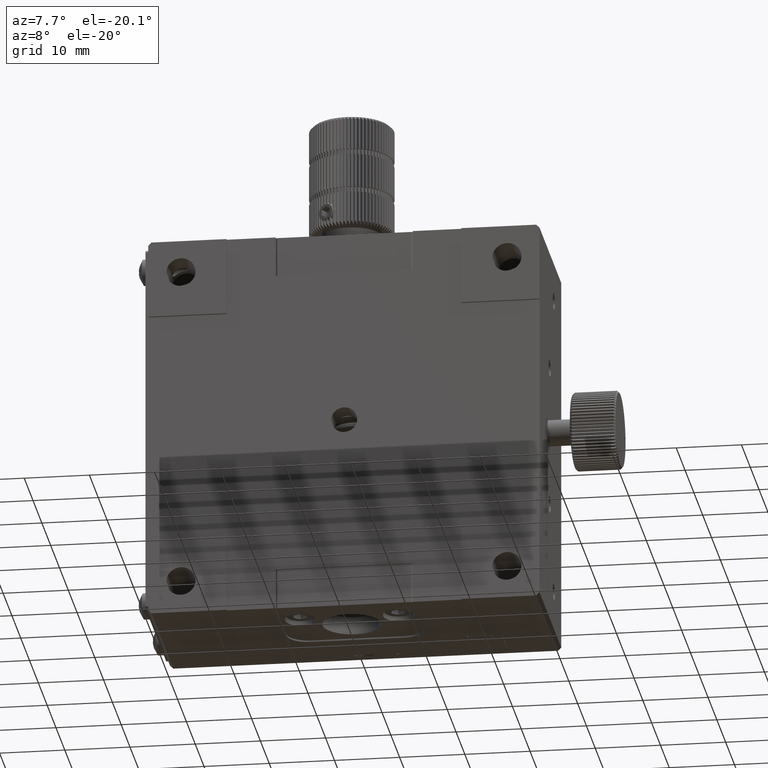
[diagram: clean part render]
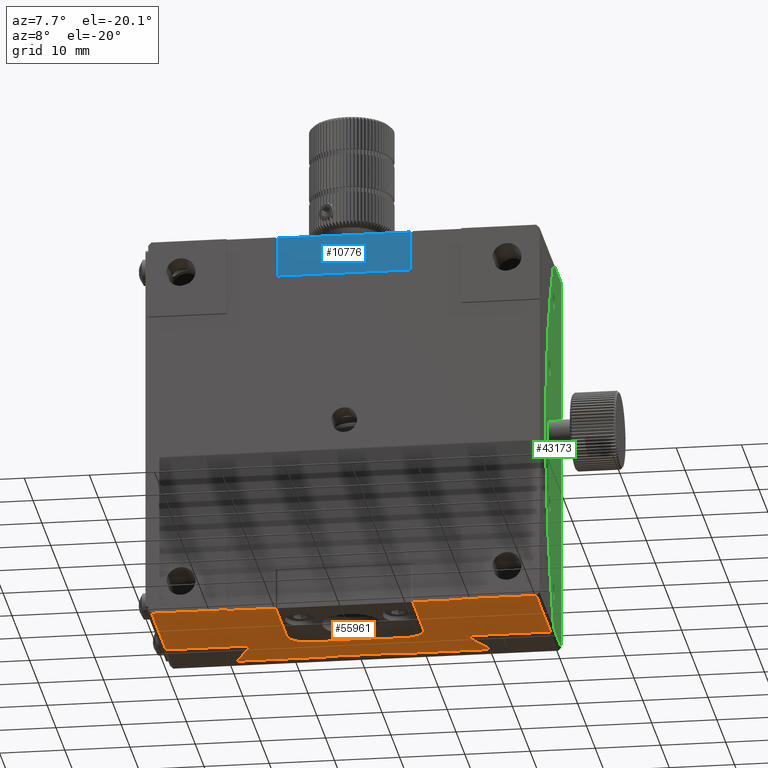
[diagram: same view with three faces highlighted in distinct colors, each labeled with its STEP entity id]
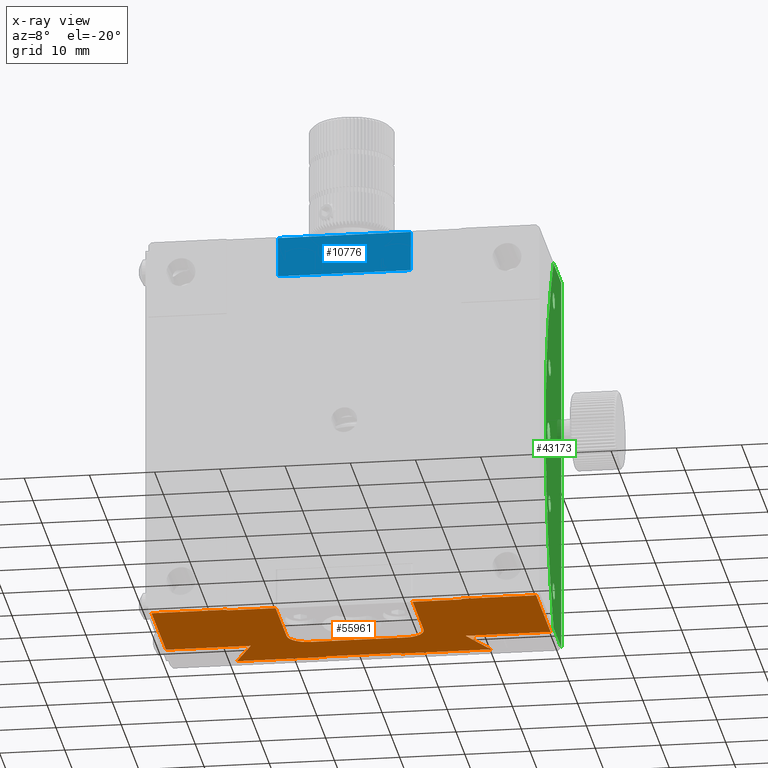
[diagram: x-ray of the same camera — body ghosted, the three highlighted faces saturated]
A machine part, auxiliary view with three faces highlighted in distinct colors.
The next image is the same camera in x-ray (body ghosted, the three faces saturated) — at least one of them is partly hidden behind the body in this view.
Their STEP definitions:

[orange] entity #55961 — the highlighted planar face has unit normal (0, 0, 1).
#1327 = LINE ( 'NONE', #55993, #27443 ) ;
#2026 = VERTEX_POINT ( 'NONE', #43690 ) ;
#2144 = DIRECTION ( 'NONE',  ( -1.000000000000000000, -0.000000000000000000, 3.491481338843133355E-15 ) ) ;
#2207 = DIRECTION ( 'NONE',  ( -3.491481338843133355E-15, -1.000000000000000000, 1.319990104689419209E-29 ) ) ;
#2865 = CARTESIAN_POINT ( 'NONE',  ( 32.05815170114983914, 61.33657315266990651, 20.22904667704488446 ) ) ;
#3054 = VERTEX_POINT ( 'NONE', #17234 ) ;
#3874 = CARTESIAN_POINT ( 'NONE',  ( 67.57580293849511577, 54.78259067946557792, 20.22904667704476012 ) ) ;
#3913 = CARTESIAN_POINT ( 'NONE',  ( 20.05815170114993862, 52.13657315266983261, 20.22904667704492709 ) ) ;
#4064 = CARTESIAN_POINT ( 'NONE',  ( 60.55815170114989598, 36.63657315266976866, 20.22904667704478499 ) ) ;
#4774 = CARTESIAN_POINT ( 'NONE',  ( 20.05815170114993862, 61.33657315266990651, 20.22904667704492709 ) ) ;
#4884 = ORIENTED_EDGE ( 'NONE', *, *, #70477, .F. ) ;
#4940 = EDGE_CURVE ( 'NONE', #67915, #35099, #9403, .T. ) ;
#5058 = LINE ( 'NONE', #46582, #64695 ) ;
#5188 = CARTESIAN_POINT ( 'NONE',  ( 30.57110469794940855, 59.08938087992758881, 20.22904673143565546 ) ) ;
#5687 = CARTESIAN_POINT ( 'NONE',  ( 57.45815170114989456, 49.03657315266978145, 20.22904667704478143 ) ) ;
#5829 = CARTESIAN_POINT ( 'NONE',  ( 55.80815170114991730, 58.80255524890676355, 20.22904667704480630 ) ) ;
#6616 = DIRECTION ( 'NONE',  ( -3.491481338843133355E-15, -1.000000000000000000, 1.219044193948983948E-29 ) ) ;
#6886 = CARTESIAN_POINT ( 'NONE',  ( 32.05815170114983914, 36.33657315266987098, 20.22904667704490578 ) ) ;
#6939 = VERTEX_POINT ( 'NONE', #18771 ) ;
#7701 = CARTESIAN_POINT ( 'NONE',  ( 20.55815170114990309, 61.33657315266990651, 20.22904667704492354 ) ) ;
#8160 = EDGE_CURVE ( 'NONE', #40470, #58418, #25551, .T. ) ;
#8985 = LINE ( 'NONE', #32634, #48270 ) ;
#9095 = ORIENTED_EDGE ( 'NONE', *, *, #51491, .F. ) ;
#9403 = B_SPLINE_CURVE_WITH_KNOTS ( 'NONE', 3,
 ( #5188, #11786, #19812, #59117 ),
 .UNSPECIFIED., .F., .F.,
 ( 4, 4 ),
 ( 1.372648714548291892E-11, 0.007103474097558771204 ),
 .UNSPECIFIED. ) ;
#9405 = CARTESIAN_POINT ( 'NONE',  ( 79.55815170114983914, 36.33657315266972176, 20.22904667704472459 ) ) ;
#9541 = CARTESIAN_POINT ( 'NONE',  ( 42.65815170114988319, 49.03657315266984540, 20.22904667704483472 ) ) ;
#9678 = CARTESIAN_POINT ( 'NONE',  ( 50.05815170114995283, 36.63657315266980419, 20.22904667704488801 ) ) ;
#10313 = LINE ( 'NONE', #46388, #53332 ) ;
#10331 = VERTEX_POINT ( 'NONE', #17253 ) ;
#11258 = VERTEX_POINT ( 'NONE', #58842 ) ;
#11648 = DIRECTION ( 'NONE',  ( 1.000000000000000000, 0.000000000000000000, -3.491481338843133355E-15 ) ) ;
#11786 = CARTESIAN_POINT ( 'NONE',  ( 31.54219587820414361, 56.92967945082794756, 20.22904667704488446 ) ) ;
#12011 = VERTEX_POINT ( 'NONE', #49597 ) ;
#12859 = VECTOR ( 'NONE', #39527, 1000.000000000000000 ) ;
#12988 = VERTEX_POINT ( 'NONE', #40323 ) ;
#13263 = EDGE_CURVE ( 'NONE', #11258, #70294, #49617, .T. ) ;
#13623 = VECTOR ( 'NONE', #2144, 1000.000000000000000 ) ;
#14865 = VERTEX_POINT ( 'NONE', #4064 ) ;
#15760 = ORIENTED_EDGE ( 'NONE', *, *, #49673, .F. ) ;
#16169 = ORIENTED_EDGE ( 'NONE', *, *, #58844, .F. ) ;
#16275 = DIRECTION ( 'NONE',  ( -0.000000000000000000, 1.000000000000000000, 0.000000000000000000 ) ) ;
#16474 = CARTESIAN_POINT ( 'NONE',  ( 55.80815170114991730, 59.08938087432369457, 20.22904667704480275 ) ) ;
#17234 = CARTESIAN_POINT ( 'NONE',  ( 44.30815170114991020, 59.08938087432377273, 20.22904667704484183 ) ) ;
#17253 = CARTESIAN_POINT ( 'NONE',  ( 68.05815170114983914, 36.63657315266975445, 20.22904667704476722 ) ) ;
#17415 = LINE ( 'NONE', #34492, #42964 ) ;
#18208 = VECTOR ( 'NONE', #27466, 1000.000000000000000 ) ;
#18365 = ORIENTED_EDGE ( 'NONE', *, *, #71165, .F. ) ;
#18472 = DIRECTION ( 'NONE',  ( -3.491481338843133355E-15, 0.000000000000000000, -1.000000000000000000 ) ) ;
#18739 = ORIENTED_EDGE ( 'NONE', *, *, #32662, .F. ) ;
#18771 = CARTESIAN_POINT ( 'NONE',  ( 32.05815170114985335, 36.63657315266986814, 20.22904667704488446 ) ) ;
#19429 = LINE ( 'NONE', #60918, #67603 ) ;
#19576 = VERTEX_POINT ( 'NONE', #64349 ) ;
#19812 = CARTESIAN_POINT ( 'NONE',  ( 32.54050046062036472, 54.78259068615608385, 20.22904667704488091 ) ) ;
#20024 = EDGE_CURVE ( 'NONE', #3054, #67915, #49484, .T. ) ;
#20323 = DIRECTION ( 'NONE',  ( 3.491481338843133355E-15, 1.000000000000000000, -1.219044193948983948E-29 ) ) ;
#20716 = DIRECTION ( 'NONE',  ( -0.000000000000000000, 1.000000000000000000, 0.000000000000000000 ) ) ;
#20932 = LINE ( 'NONE', #21719, #44136 ) ;
#21719 = CARTESIAN_POINT ( 'NONE',  ( 20.05815170114993862, 36.33657315266974308, 20.22904667704492709 ) ) ;
#23637 = ORIENTED_EDGE ( 'NONE', *, *, #28960, .F. ) ;
#24057 = DIRECTION ( 'NONE',  ( -1.000000000000000000, -0.000000000000000000, 3.491481338843133355E-15 ) ) ;
#24245 = CARTESIAN_POINT ( 'NONE',  ( 20.05815170114993862, 58.80255524890677066, 20.22904667704492709 ) ) ;
#24498 = VERTEX_POINT ( 'NONE', #6886 ) ;
#24924 = ORIENTED_EDGE ( 'NONE', *, *, #62489, .F. ) ;
#25551 = CIRCLE ( 'NONE', #36686, 3.099999999999998757 ) ;
#27443 = VECTOR ( 'NONE', #20323, 1000.000000000000000 ) ;
#27466 = DIRECTION ( 'NONE',  ( -0.000000000000000000, 1.000000000000000000, 0.000000000000000000 ) ) ;
#28059 = FACE_OUTER_BOUND ( 'NONE', #54481, .T. ) ;
#28430 = DIRECTION ( 'NONE',  ( 3.491481338843133355E-15, 0.000000000000000000, 1.000000000000000000 ) ) ;
#28797 = CARTESIAN_POINT ( 'NONE',  ( 50.05815170114995283, 36.63657315266980419, 20.22904667704478499 ) ) ;
#28960 = EDGE_CURVE ( 'NONE', #6939, #19576, #29035, .T. ) ;
#29035 = LINE ( 'NONE', #9678, #12859 ) ;
#29174 = LINE ( 'NONE', #28797, #49773 ) ;
#29859 = LINE ( 'NONE', #34931, #46592 ) ;
#30259 = CARTESIAN_POINT ( 'NONE',  ( 20.05815170114993862, 52.64446860276273554, 20.22904667704492709 ) ) ;
#30922 = CARTESIAN_POINT ( 'NONE',  ( 42.65815170114989030, 52.13657315266983261, 20.22904667704484183 ) ) ;
#31076 = VERTEX_POINT ( 'NONE', #9405 ) ;
#31244 = EDGE_CURVE ( 'NONE', #3054, #2026, #19429, .T. ) ;
#31356 = DIRECTION ( 'NONE',  ( 0.000000000000000000, -1.000000000000000000, -0.000000000000000000 ) ) ;
#31433 = EDGE_CURVE ( 'NONE', #12988, #31076, #20932, .T. ) ;
#31644 = ORIENTED_EDGE ( 'NONE', *, *, #41591, .F. ) ;
#32634 = CARTESIAN_POINT ( 'NONE',  ( 60.55815170114989598, 61.33657315266990651, 20.22904667704478499 ) ) ;
#32662 = EDGE_CURVE ( 'NONE', #31076, #58430, #17415, .T. ) ;
#33314 = CARTESIAN_POINT ( 'NONE',  ( 66.55815170114989598, 52.64446860276277107, 20.22904667704476367 ) ) ;
#33567 = DIRECTION ( 'NONE',  ( -3.491481338843133355E-15, -0.000000000000000000, -1.000000000000000000 ) ) ;
#34054 = LINE ( 'NONE', #45320, #18208 ) ;
#34492 = CARTESIAN_POINT ( 'NONE',  ( 79.55815170114983914, 61.33657315266990651, 20.22904667704472104 ) ) ;
#34552 = DIRECTION ( 'NONE',  ( 0.000000000000000000, -1.000000000000000000, -0.000000000000000000 ) ) ;
#34620 = ORIENTED_EDGE ( 'NONE', *, *, #31433, .F. ) ;
#34931 = CARTESIAN_POINT ( 'NONE',  ( 20.05815170114993862, 52.64446860276289897, 20.22904667704492709 ) ) ;
#35099 = VERTEX_POINT ( 'NONE', #38763 ) ;
#36686 = AXIS2_PLACEMENT_3D ( 'NONE', #5687, #18472, #58854 ) ;
#36723 = VERTEX_POINT ( 'NONE', #52149 ) ;
#37048 = ORIENTED_EDGE ( 'NONE', *, *, #13263, .F. ) ;
#37407 = VERTEX_POINT ( 'NONE', #30922 ) ;
#38395 = DIRECTION ( 'NONE',  ( 1.000000000000000000, 0.000000000000000000, -3.491481338843133355E-15 ) ) ;
#38763 = CARTESIAN_POINT ( 'NONE',  ( 33.55815170114988177, 52.64446860276290607, 20.22904667704487736 ) ) ;
#39056 = AXIS2_PLACEMENT_3D ( 'NONE', #9541, #33567, #63834 ) ;
#39417 = CARTESIAN_POINT ( 'NONE',  ( 68.05815170114983914, 36.63657315266974024, 20.22904667704477077 ) ) ;
#39483 = ORIENTED_EDGE ( 'NONE', *, *, #31244, .T. ) ;
#39527 = DIRECTION ( 'NONE',  ( 1.000000000000000000, -3.491481338843133355E-15, 0.000000000000000000 ) ) ;
#40061 = VECTOR ( 'NONE', #31356, 1000.000000000000000 ) ;
#40323 = CARTESIAN_POINT ( 'NONE',  ( 68.05815170114983914, 36.33657315266974308, 20.22904667704476722 ) ) ;
#40470 = VERTEX_POINT ( 'NONE', #70550 ) ;
#40543 = DIRECTION ( 'NONE',  ( -1.000000000000000000, -0.000000000000000000, 3.491481338843133355E-15 ) ) ;
#40675 = CARTESIAN_POINT ( 'NONE',  ( 69.54519867447747572, 59.08938086927874167, 20.22904666216995651 ) ) ;
#40837 = PLANE ( 'NONE',  #69639 ) ;
#41123 = DIRECTION ( 'NONE',  ( 1.000000000000000000, 0.000000000000000000, -3.491481338843133355E-15 ) ) ;
#41222 = VERTEX_POINT ( 'NONE', #16474 ) ;
#41548 = CIRCLE ( 'NONE', #39056, 3.099999999999998757 ) ;
#41591 = EDGE_CURVE ( 'NONE', #51023, #12011, #70135, .T. ) ;
#42724 = VECTOR ( 'NONE', #53734, 1000.000000000000000 ) ;
#42964 = VECTOR ( 'NONE', #16275, 1000.000000000000000 ) ;
#43231 = CARTESIAN_POINT ( 'NONE',  ( 20.55815170114989598, 36.33657315266990651, 20.22904667704491644 ) ) ;
#43690 = CARTESIAN_POINT ( 'NONE',  ( 44.30815170114991730, 58.80255524890679197, 20.22904667704484183 ) ) ;
#44136 = VECTOR ( 'NONE', #38395, 1000.000000000000000 ) ;
#45025 = EDGE_CURVE ( 'NONE', #36723, #37407, #41548, .T. ) ;
#45153 = VECTOR ( 'NONE', #11648, 1000.000000000000000 ) ;
#45320 = CARTESIAN_POINT ( 'NONE',  ( 39.55815170114983914, 61.33657315266990651, 20.22904667704485959 ) ) ;
#45396 = ORIENTED_EDGE ( 'NONE', *, *, #53743, .F. ) ;
#45978 = VECTOR ( 'NONE', #24057, 1000.000000000000000 ) ;
#46388 = CARTESIAN_POINT ( 'NONE',  ( 20.05815170114993862, 59.08938087432366615, 20.22904667704492709 ) ) ;
#46582 = CARTESIAN_POINT ( 'NONE',  ( 20.05815170114993862, 36.33657315266990651, 20.22904667704492709 ) ) ;
#46592 = VECTOR ( 'NONE', #53539, 1000.000000000000000 ) ;
#46950 = LINE ( 'NONE', #3913, #45153 ) ;
#47701 = ORIENTED_EDGE ( 'NONE', *, *, #4940, .F. ) ;
#48270 = VECTOR ( 'NONE', #34552, 1000.000000000000000 ) ;
#49484 = LINE ( 'NONE', #60344, #13623 ) ;
#49597 = CARTESIAN_POINT ( 'NONE',  ( 69.54519867447747572, 59.08938086927874167, 20.22904666216995651 ) ) ;
#49617 = LINE ( 'NONE', #7701, #40061 ) ;
#49673 = EDGE_CURVE ( 'NONE', #12011, #41222, #10313, .T. ) ;
#49773 = VECTOR ( 'NONE', #52865, 1000.000000000000000 ) ;
#50851 = ORIENTED_EDGE ( 'NONE', *, *, #72370, .F. ) ;
#51023 = VERTEX_POINT ( 'NONE', #33314 ) ;
#51261 = ORIENTED_EDGE ( 'NONE', *, *, #8160, .F. ) ;
#51491 = EDGE_CURVE ( 'NONE', #58418, #14865, #8985, .T. ) ;
#51627 = VERTEX_POINT ( 'NONE', #5829 ) ;
#52149 = CARTESIAN_POINT ( 'NONE',  ( 39.55815170114986046, 49.03657315266984540, 20.22904667704484538 ) ) ;
#52865 = DIRECTION ( 'NONE',  ( 1.000000000000000000, -3.491481338843133355E-15, 0.000000000000000000 ) ) ;
#53332 = VECTOR ( 'NONE', #40543, 1000.000000000000000 ) ;
#53463 = EDGE_CURVE ( 'NONE', #51627, #41222, #1327, .T. ) ;
#53539 = DIRECTION ( 'NONE',  ( -1.000000000000000000, -0.000000000000000000, 3.491481338843133355E-15 ) ) ;
#53734 = DIRECTION ( 'NONE',  ( -1.000000000000000000, -0.000000000000000000, 3.491481338843133355E-15 ) ) ;
#53743 = EDGE_CURVE ( 'NONE', #14865, #10331, #29174, .T. ) ;
#54481 = EDGE_LOOP ( 'NONE', ( #15760, #31644, #18365, #18739, #34620, #67689, #45396, #9095, #51261, #16169, #67141, #63998, #23637, #4884, #50851, #37048, #24924, #47701, #63940, #39483, #61814, #56335 ) ) ;
#54599 = VECTOR ( 'NONE', #20716, 1000.000000000000000 ) ;
#55411 = EDGE_CURVE ( 'NONE', #10331, #12988, #61575, .T. ) ;
#55961 = ADVANCED_FACE ( 'NONE', ( #28059 ), #40837, .F. ) ;
#55993 = CARTESIAN_POINT ( 'NONE',  ( 55.80815170115004520, 96.33657315266978571, 20.22904667704480985 ) ) ;
#56123 = VECTOR ( 'NONE', #2207, 1000.000000000000000 ) ;
#56335 = ORIENTED_EDGE ( 'NONE', *, *, #53463, .T. ) ;
#57008 = CARTESIAN_POINT ( 'NONE',  ( 66.55815170114989598, 52.64446860276277107, 20.22904667704476367 ) ) ;
#58418 = VERTEX_POINT ( 'NONE', #58795 ) ;
#58430 = VERTEX_POINT ( 'NONE', #65366 ) ;
#58795 = CARTESIAN_POINT ( 'NONE',  ( 60.55815170114989598, 49.03657315266977434, 20.22904667704477788 ) ) ;
#58842 = CARTESIAN_POINT ( 'NONE',  ( 20.55815170114989954, 52.64446860276293449, 20.22904667704492354 ) ) ;
#58844 = EDGE_CURVE ( 'NONE', #37407, #40470, #46950, .T. ) ;
#58854 = DIRECTION ( 'NONE',  ( -1.000000000000000000, 0.000000000000000000, 3.357529308342208488E-15 ) ) ;
#59117 = CARTESIAN_POINT ( 'NONE',  ( 33.55815170114988177, 52.64446860276290607, 20.22904667704487736 ) ) ;
#59382 = LINE ( 'NONE', #30259, #45978 ) ;
#59530 = EDGE_CURVE ( 'NONE', #51627, #2026, #70428, .T. ) ;
#60344 = CARTESIAN_POINT ( 'NONE',  ( 20.05815170114993862, 59.08938087432376562, 20.22904667704492709 ) ) ;
#60918 = CARTESIAN_POINT ( 'NONE',  ( 44.30815170115005230, 96.33657315266981414, 20.22904667704483828 ) ) ;
#61575 = LINE ( 'NONE', #39417, #56123 ) ;
#61814 = ORIENTED_EDGE ( 'NONE', *, *, #59530, .F. ) ;
#62489 = EDGE_CURVE ( 'NONE', #35099, #11258, #29859, .T. ) ;
#63834 = DIRECTION ( 'NONE',  ( 1.000000000000000000, 0.000000000000000000, -3.357529308342208488E-15 ) ) ;
#63940 = ORIENTED_EDGE ( 'NONE', *, *, #20024, .F. ) ;
#63998 = ORIENTED_EDGE ( 'NONE', *, *, #64624, .F. ) ;
#64349 = CARTESIAN_POINT ( 'NONE',  ( 39.55815170114983914, 36.63657315266986814, 20.22904667704485959 ) ) ;
#64624 = EDGE_CURVE ( 'NONE', #19576, #36723, #34054, .T. ) ;
#64695 = VECTOR ( 'NONE', #41123, 1000.000000000000000 ) ;
#65366 = CARTESIAN_POINT ( 'NONE',  ( 79.55815170114988177, 52.64446860276275686, 20.22904667704472104 ) ) ;
#67141 = ORIENTED_EDGE ( 'NONE', *, *, #45025, .F. ) ;
#67603 = VECTOR ( 'NONE', #6616, 1000.000000000000000 ) ;
#67689 = ORIENTED_EDGE ( 'NONE', *, *, #55411, .F. ) ;
#67915 = VERTEX_POINT ( 'NONE', #73961 ) ;
#69059 = CARTESIAN_POINT ( 'NONE',  ( 68.57410751215059008, 56.92967942500816036, 20.22904667704475656 ) ) ;
#69639 = AXIS2_PLACEMENT_3D ( 'NONE', #4774, #28430, #69962 ) ;
#69962 = DIRECTION ( 'NONE',  ( 1.000000000000000000, 0.000000000000000000, -3.491481338843133355E-15 ) ) ;
#70135 = B_SPLINE_CURVE_WITH_KNOTS ( 'NONE', 3,
 ( #57008, #3874, #69059, #40675 ),
 .UNSPECIFIED., .F., .F.,
 ( 4, 4 ),
 ( 4.388541835720876531E-17, 0.007103474061609068788 ),
 .UNSPECIFIED. ) ;
#70294 = VERTEX_POINT ( 'NONE', #43231 ) ;
#70428 = LINE ( 'NONE', #24245, #42724 ) ;
#70477 = EDGE_CURVE ( 'NONE', #24498, #6939, #73849, .T. ) ;
#70550 = CARTESIAN_POINT ( 'NONE',  ( 57.45815170114989456, 52.13657315266980419, 20.22904667704478143 ) ) ;
#71165 = EDGE_CURVE ( 'NONE', #58430, #51023, #59382, .T. ) ;
#72370 = EDGE_CURVE ( 'NONE', #70294, #24498, #5058, .T. ) ;
#73849 = LINE ( 'NONE', #2865, #54599 ) ;
#73961 = CARTESIAN_POINT ( 'NONE',  ( 30.57110469794940855, 59.08938087992758881, 20.22904673143565546 ) ) ;

[blue] entity #10776 — the highlighted planar face has unit normal (0, 1, 0).
#1783 = VECTOR ( 'NONE', #40273, 1000.000000000000000 ) ;
#1821 = VERTEX_POINT ( 'NONE', #58091 ) ;
#5692 = EDGE_CURVE ( 'NONE', #74011, #62080, #27718, .T. ) ;
#7471 = VECTOR ( 'NONE', #13759, 1000.000000000000000 ) ;
#8252 = ORIENTED_EDGE ( 'NONE', *, *, #70300, .F. ) ;
#9126 = CARTESIAN_POINT ( 'NONE',  ( 39.55815170114969703, 36.83657315266944465, 73.97904667704486315 ) ) ;
#10776 = ADVANCED_FACE ( 'NONE', ( #70929 ), #52733, .F. ) ;
#10922 = AXIS2_PLACEMENT_3D ( 'NONE', #53102, #29804, #64358 ) ;
#12488 = CARTESIAN_POINT ( 'NONE',  ( 39.85815170114966577, 36.83657315266948018, 73.97904667704486315 ) ) ;
#13759 = DIRECTION ( 'NONE',  ( 4.200378946528876908E-31, 1.201068257676339382E-16, -1.000000000000000000 ) ) ;
#15036 = DIRECTION ( 'NONE',  ( -4.200378946528876908E-31, -1.201068257676339382E-16, 1.000000000000000000 ) ) ;
#18033 = ORIENTED_EDGE ( 'NONE', *, *, #5692, .F. ) ;
#22051 = LINE ( 'NONE', #57347, #1783 ) ;
#24774 = CARTESIAN_POINT ( 'NONE',  ( 60.25815170114967145, 36.83657315266944465, 73.97904667704477788 ) ) ;
#27718 = LINE ( 'NONE', #9126, #50072 ) ;
#29804 = DIRECTION ( 'NONE',  ( 3.497202527569239552E-15, 1.000000000000000000, 1.201068257676339382E-16 ) ) ;
#30471 = EDGE_CURVE ( 'NONE', #62080, #70636, #32483, .T. ) ;
#32483 = LINE ( 'NONE', #68168, #51450 ) ;
#40273 = DIRECTION ( 'NONE',  ( 1.000000000000000000, -3.497202527569239552E-15, -0.000000000000000000 ) ) ;
#50072 = VECTOR ( 'NONE', #51401, 1000.000000000000000 ) ;
#51401 = DIRECTION ( 'NONE',  ( -1.000000000000000000, 0.000000000000000000, 3.515396778011990526E-15 ) ) ;
#51450 = VECTOR ( 'NONE', #15036, 1000.000000000000000 ) ;
#51741 = CARTESIAN_POINT ( 'NONE',  ( 39.85815170114967287, 36.83657315266951571, 80.17904667704483757 ) ) ;
#52733 = PLANE ( 'NONE',  #10922 ) ;
#53102 = CARTESIAN_POINT ( 'NONE',  ( 39.55815170114967572, 36.83657315266951571, 73.97904667704486315 ) ) ;
#53225 = ORIENTED_EDGE ( 'NONE', *, *, #30471, .F. ) ;
#57347 = CARTESIAN_POINT ( 'NONE',  ( 39.55815170114967572, 36.83657315266951571, 80.17904667704483757 ) ) ;
#58091 = CARTESIAN_POINT ( 'NONE',  ( 60.25815170114968566, 36.83657315266944465, 80.17904667704480914 ) ) ;
#62080 = VERTEX_POINT ( 'NONE', #12488 ) ;
#64358 = DIRECTION ( 'NONE',  ( -1.000000000000000000, 3.497202527569239552E-15, 0.000000000000000000 ) ) ;
#67278 = CARTESIAN_POINT ( 'NONE',  ( 60.25815170114967145, 36.83657315266944465, 73.97904667704486315 ) ) ;
#68168 = CARTESIAN_POINT ( 'NONE',  ( 39.85815170114966577, 36.83657315266951571, 73.97904667704486315 ) ) ;
#68418 = EDGE_LOOP ( 'NONE', ( #53225, #18033, #8252, #69988 ) ) ;
#69988 = ORIENTED_EDGE ( 'NONE', *, *, #75975, .F. ) ;
#70300 = EDGE_CURVE ( 'NONE', #1821, #74011, #71935, .T. ) ;
#70636 = VERTEX_POINT ( 'NONE', #51741 ) ;
#70929 = FACE_OUTER_BOUND ( 'NONE', #68418, .T. ) ;
#71935 = LINE ( 'NONE', #67278, #7471 ) ;
#74011 = VERTEX_POINT ( 'NONE', #24774 ) ;
#75975 = EDGE_CURVE ( 'NONE', #70636, #1821, #22051, .T. ) ;

[green] entity #43173 — the highlighted planar face has unit normal (-1, 0, 0).
#112 = FACE_OUTER_BOUND ( 'NONE', #13364, .T. ) ;
#885 = FACE_BOUND ( 'NONE', #3609, .T. ) ;
#2180 = EDGE_LOOP ( 'NONE', ( #28403 ) ) ;
#2270 = EDGE_CURVE ( 'NONE', #44945, #44945, #47248, .T. ) ;
#2925 = AXIS2_PLACEMENT_3D ( 'NONE', #70174, #45358, #63590 ) ;
#3609 = EDGE_LOOP ( 'NONE', ( #60285 ) ) ;
#4577 = DIRECTION ( 'NONE',  ( 1.000000000000000000, -3.491481338843134144E-15, -3.491481338843133355E-15 ) ) ;
#6798 = CIRCLE ( 'NONE', #28619, 1.649999999999991696 ) ;
#7912 = CARTESIAN_POINT ( 'NONE',  ( 80.05815170115013757, 52.30533424209619398, 79.72904667704474946 ) ) ;
#8767 = DIRECTION ( 'NONE',  ( 0.000000000000000000, 1.000000000000000000, 0.000000000000000000 ) ) ;
#10256 = CARTESIAN_POINT ( 'NONE',  ( 80.05815170115012336, 52.60017526715561331, 73.72904667704474946 ) ) ;
#10491 = EDGE_LOOP ( 'NONE', ( #26497 ) ) ;
#11294 = DIRECTION ( 'NONE',  ( 1.000000000000000000, -3.491481338843134144E-15, -3.491481338843133355E-15 ) ) ;
#13364 = EDGE_LOOP ( 'NONE', ( #38555, #65607, #58357, #37103 ) ) ;
#13546 = CARTESIAN_POINT ( 'NONE',  ( 80.05815170114995283, 53.85017526715560621, 26.72904667704472814 ) ) ;
#13906 = EDGE_CURVE ( 'NONE', #22415, #22415, #42625, .T. ) ;
#13949 = VECTOR ( 'NONE', #49015, 1000.000000000000000 ) ;
#14295 = EDGE_CURVE ( 'NONE', #29665, #35841, #35371, .T. ) ;
#15354 = CARTESIAN_POINT ( 'NONE',  ( 80.05815170114998125, 47.92043431446822410, 39.22904667704474235 ) ) ;
#16395 = CIRCLE ( 'NONE', #42409, 1.249999999999994227 ) ;
#18337 = PLANE ( 'NONE',  #30559 ) ;
#18627 = AXIS2_PLACEMENT_3D ( 'NONE', #57725, #4577, #51904 ) ;
#21466 = EDGE_CURVE ( 'NONE', #48645, #29665, #42326, .T. ) ;
#22415 = VERTEX_POINT ( 'NONE', #40261 ) ;
#22650 = DIRECTION ( 'NONE',  ( 0.000000000000000000, 1.000000000000000000, 0.000000000000000000 ) ) ;
#23092 = CARTESIAN_POINT ( 'NONE',  ( 80.05815170115006651, 49.17043431446822410, 61.22904667704473525 ) ) ;
#24559 = CARTESIAN_POINT ( 'NONE',  ( 80.05815170115010915, 96.33657315266967203, 20.72904667704473525 ) ) ;
#26497 = ORIENTED_EDGE ( 'NONE', *, *, #68773, .F. ) ;
#28403 = ORIENTED_EDGE ( 'NONE', *, *, #41145, .F. ) ;
#28619 = AXIS2_PLACEMENT_3D ( 'NONE', #53951, #11294, #29124 ) ;
#29124 = DIRECTION ( 'NONE',  ( 0.000000000000000000, 1.000000000000000000, 0.000000000000000000 ) ) ;
#29665 = VERTEX_POINT ( 'NONE', #56043 ) ;
#30559 = AXIS2_PLACEMENT_3D ( 'NONE', #47828, #52886, #41988 ) ;
#31917 = ORIENTED_EDGE ( 'NONE', *, *, #37834, .F. ) ;
#32830 = CARTESIAN_POINT ( 'NONE',  ( 80.05815170115012336, 53.85017526715561331, 73.72904667704474946 ) ) ;
#34652 = FACE_BOUND ( 'NONE', #72763, .T. ) ;
#34842 = AXIS2_PLACEMENT_3D ( 'NONE', #41695, #65356, #51810 ) ;
#35197 = EDGE_CURVE ( 'NONE', #43403, #48645, #38872, .T. ) ;
#35371 = LINE ( 'NONE', #70280, #48904 ) ;
#35841 = VERTEX_POINT ( 'NONE', #46981 ) ;
#36511 = CARTESIAN_POINT ( 'NONE',  ( 80.05815170115029389, 96.33657315266967203, 79.72904667704473525 ) ) ;
#37103 = ORIENTED_EDGE ( 'NONE', *, *, #41394, .F. ) ;
#37512 = VERTEX_POINT ( 'NONE', #61175 ) ;
#37834 = EDGE_CURVE ( 'NONE', #37512, #37512, #6798, .T. ) ;
#38555 = ORIENTED_EDGE ( 'NONE', *, *, #14295, .F. ) ;
#38872 = CIRCLE ( 'NONE', #2925, 53.00000000000000711 ) ;
#39574 = VECTOR ( 'NONE', #60175, 1000.000000000000000 ) ;
#40261 = CARTESIAN_POINT ( 'NONE',  ( 80.05815170114998125, 49.17043431446822410, 39.22904667704474235 ) ) ;
#40927 = VERTEX_POINT ( 'NONE', #23092 ) ;
#41145 = EDGE_CURVE ( 'NONE', #48774, #48774, #16395, .T. ) ;
#41394 = EDGE_CURVE ( 'NONE', #35841, #43403, #65676, .T. ) ;
#41695 = CARTESIAN_POINT ( 'NONE',  ( 80.05815170114995283, 52.60017526715560621, 26.72904667704472814 ) ) ;
#41988 = DIRECTION ( 'NONE',  ( 3.491481338843132961E-15, 0.000000000000000000, 1.000000000000000000 ) ) ;
#42326 = LINE ( 'NONE', #36511, #39574 ) ;
#42409 = AXIS2_PLACEMENT_3D ( 'NONE', #10256, #45949, #22650 ) ;
#42625 = CIRCLE ( 'NONE', #69874, 1.249999999999994227 ) ;
#43173 = ADVANCED_FACE ( 'NONE', ( #34652, #885, #64520, #71472, #112, #59842 ), #18337, .F. ) ;
#43403 = VERTEX_POINT ( 'NONE', #63672 ) ;
#44945 = VERTEX_POINT ( 'NONE', #13546 ) ;
#45358 = DIRECTION ( 'NONE',  ( -1.000000000000000000, 3.491481338843134144E-15, 3.491481338843133355E-15 ) ) ;
#45949 = DIRECTION ( 'NONE',  ( 1.000000000000000000, -3.491481338843134144E-15, -3.491481338843133355E-15 ) ) ;
#46622 = DIRECTION ( 'NONE',  ( -1.757305492594818098E-15, -1.757305492594744931E-15, -1.000000000000000000 ) ) ;
#46981 = CARTESIAN_POINT ( 'NONE',  ( 80.05815170114999546, 61.03657315266966776, 20.72904667704473880 ) ) ;
#47248 = CIRCLE ( 'NONE', #34842, 1.249999999999994227 ) ;
#47828 = CARTESIAN_POINT ( 'NONE',  ( 80.05815170115019441, 96.33657315266967203, 50.22904667704474235 ) ) ;
#48645 = VERTEX_POINT ( 'NONE', #7912 ) ;
#48774 = VERTEX_POINT ( 'NONE', #32830 ) ;
#48904 = VECTOR ( 'NONE', #46622, 1000.000000000000000 ) ;
#49015 = DIRECTION ( 'NONE',  ( -3.491481338843132961E-15, -1.000000000000000000, 1.219044193948983668E-29 ) ) ;
#50665 = DIRECTION ( 'NONE',  ( 1.000000000000000000, -3.491481338843134144E-15, -3.491481338843133355E-15 ) ) ;
#51810 = DIRECTION ( 'NONE',  ( 0.000000000000000000, 1.000000000000000000, 0.000000000000000000 ) ) ;
#51904 = DIRECTION ( 'NONE',  ( 0.000000000000000000, 1.000000000000000000, 0.000000000000000000 ) ) ;
#52074 = CIRCLE ( 'NONE', #18627, 1.249999999999994227 ) ;
#52886 = DIRECTION ( 'NONE',  ( -1.000000000000000000, 3.491481338843132961E-15, 3.491481338843132961E-15 ) ) ;
#53951 = CARTESIAN_POINT ( 'NONE',  ( 80.05815170115002388, 46.83657315266967913, 50.22904667704474946 ) ) ;
#56043 = CARTESIAN_POINT ( 'NONE',  ( 80.05815170115018020, 61.03657315266968197, 79.72904667704473525 ) ) ;
#57725 = CARTESIAN_POINT ( 'NONE',  ( 80.05815170115006651, 47.92043431446822410, 61.22904667704473525 ) ) ;
#58357 = ORIENTED_EDGE ( 'NONE', *, *, #35197, .F. ) ;
#59842 = FACE_BOUND ( 'NONE', #65239, .T. ) ;
#60175 = DIRECTION ( 'NONE',  ( 3.491481338843132961E-15, 1.000000000000000000, -1.219044193948983668E-29 ) ) ;
#60285 = ORIENTED_EDGE ( 'NONE', *, *, #13906, .F. ) ;
#61175 = CARTESIAN_POINT ( 'NONE',  ( 80.05815170115002388, 48.48657315266967061, 50.22904667704474946 ) ) ;
#63590 = DIRECTION ( 'NONE',  ( 3.403985688709205741E-15, 1.000000000000000000, 0.000000000000000000 ) ) ;
#63672 = CARTESIAN_POINT ( 'NONE',  ( 80.05815170114993862, 52.30533424209620108, 20.72904667704472814 ) ) ;
#64520 = FACE_BOUND ( 'NONE', #10491, .T. ) ;
#65239 = EDGE_LOOP ( 'NONE', ( #31917 ) ) ;
#65356 = DIRECTION ( 'NONE',  ( 1.000000000000000000, -3.491481338843134144E-15, -3.491481338843133355E-15 ) ) ;
#65607 = ORIENTED_EDGE ( 'NONE', *, *, #21466, .F. ) ;
#65676 = LINE ( 'NONE', #24559, #13949 ) ;
#67591 = ORIENTED_EDGE ( 'NONE', *, *, #2270, .F. ) ;
#68773 = EDGE_CURVE ( 'NONE', #40927, #40927, #52074, .T. ) ;
#69874 = AXIS2_PLACEMENT_3D ( 'NONE', #15354, #50665, #8767 ) ;
#70174 = CARTESIAN_POINT ( 'NONE',  ( 80.05815170115019441, 96.33657315266967203, 50.22904667704474235 ) ) ;
#70280 = CARTESIAN_POINT ( 'NONE',  ( 80.05815170115012336, 61.03657315266962513, 50.22904667704474235 ) ) ;
#71472 = FACE_BOUND ( 'NONE', #2180, .T. ) ;
#72763 = EDGE_LOOP ( 'NONE', ( #67591 ) ) ;